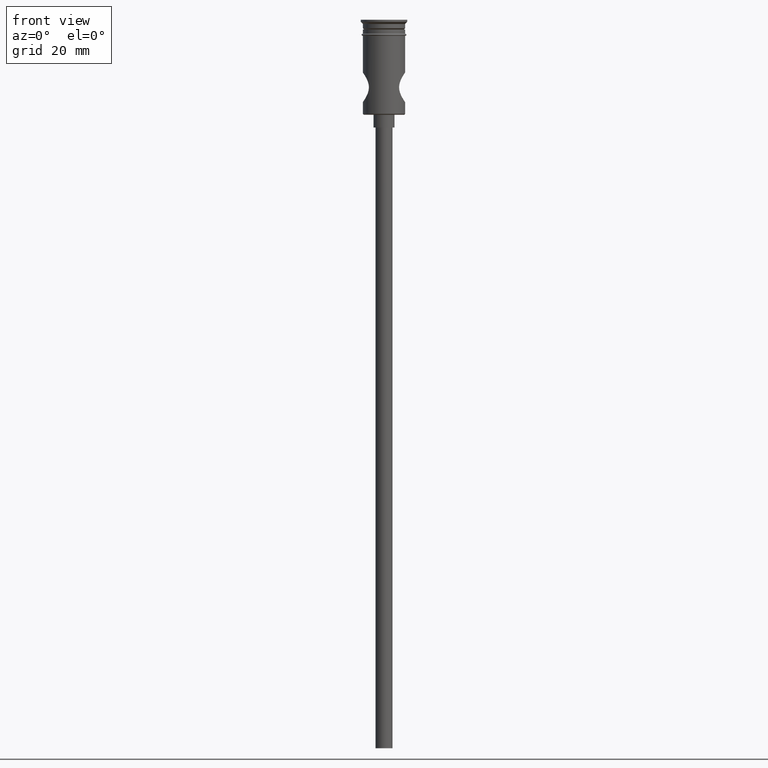
[diagram: clean part render]
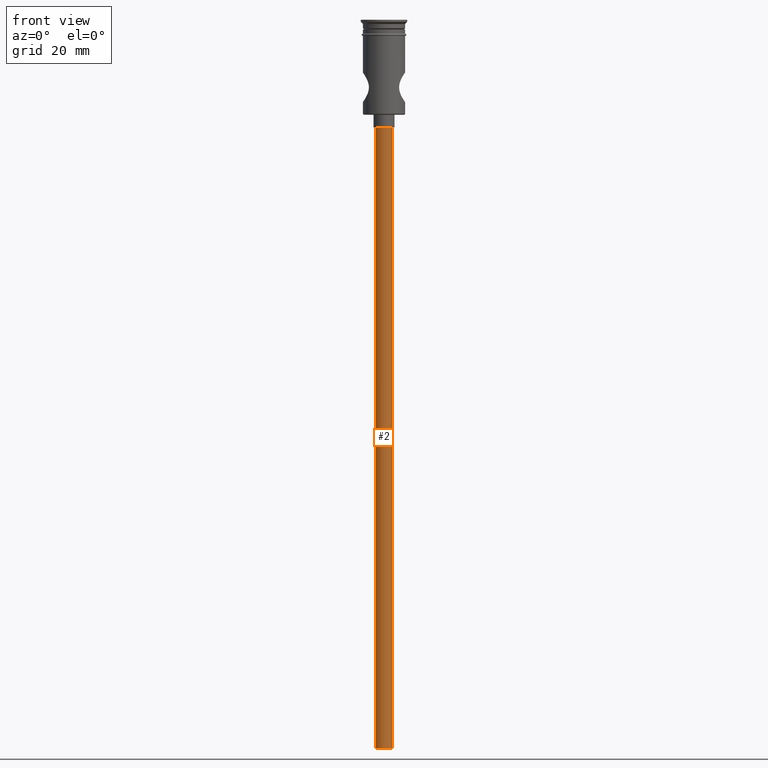
[diagram: same view with one face highlighted and labeled with its STEP entity id]
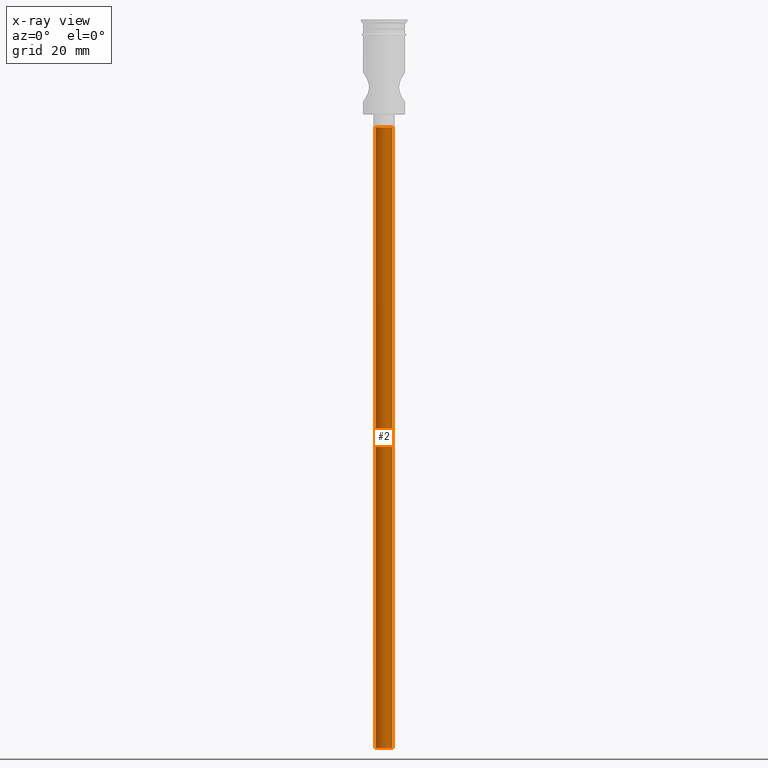
[diagram: x-ray of the same camera — body ghosted, the highlighted face saturated]
A machine part, front view. The second image highlights one B-rep face of the part: STEP entity #2.
The next image is the same camera in x-ray: the body ghosted, the highlighted face saturated — about 0% of this face is hidden behind the body in this view.
In plain terms, the highlighted cylindrical surface (edge-blend (fillet) strip) has radius 2 mm, axis along (-0, -0, 1).
Its self-contained STEP definition (entity closure, byte-faithful):
#2 = ADVANCED_FACE ( 'NONE', ( #1074 ), #948, .T. ) ;
#65 = DIRECTION ( 'NONE',  ( 0.000000000000000000, 0.000000000000000000, -1.000000000000000000 ) ) ;
#76 = DIRECTION ( 'NONE',  ( -0.000000000000000000, -0.000000000000000000, 1.000000000000000000 ) ) ;
#91 = DIRECTION ( 'NONE',  ( 0.000000000000000000, 0.000000000000000000, -1.000000000000000000 ) ) ;
#96 = LINE ( 'NONE', #1119, #300 ) ;
#128 = ORIENTED_EDGE ( 'NONE', *, *, #344, .F. ) ;
#194 = CARTESIAN_POINT ( 'NONE',  ( 0.000000000000000000, 0.000000000000000000, -172.5000000000000000 ) ) ;
#224 = CARTESIAN_POINT ( 'NONE',  ( -2.000000000000000000, 2.449293598294706414E-16, -172.5000000000000000 ) ) ;
#284 = DIRECTION ( 'NONE',  ( -0.000000000000000000, -0.000000000000000000, 1.000000000000000000 ) ) ;
#300 = VECTOR ( 'NONE', #1352, 1000.000000000000000 ) ;
#301 = VERTEX_POINT ( 'NONE', #471 ) ;
#344 = EDGE_CURVE ( 'NONE', #546, #436, #413, .T. ) ;
#402 = LINE ( 'NONE', #839, #688 ) ;
#413 = CIRCLE ( 'NONE', #1213, 2.000000000000000000 ) ;
#436 = VERTEX_POINT ( 'NONE', #224 ) ;
#471 = CARTESIAN_POINT ( 'NONE',  ( 2.000000000000000000, 0.000000000000000000, -25.50000000000000000 ) ) ;
#546 = VERTEX_POINT ( 'NONE', #914 ) ;
#594 = AXIS2_PLACEMENT_3D ( 'NONE', #1310, #91, #1445 ) ;
#643 = CARTESIAN_POINT ( 'NONE',  ( 0.000000000000000000, 0.000000000000000000, -172.5000000000000000 ) ) ;
#688 = VECTOR ( 'NONE', #284, 1000.000000000000000 ) ;
#711 = ORIENTED_EDGE ( 'NONE', *, *, #1047, .T. ) ;
#731 = DIRECTION ( 'NONE',  ( -1.000000000000000000, 0.000000000000000000, 0.000000000000000000 ) ) ;
#750 = DIRECTION ( 'NONE',  ( 1.000000000000000000, 0.000000000000000000, 0.000000000000000000 ) ) ;
#835 = VERTEX_POINT ( 'NONE', #1230 ) ;
#839 = CARTESIAN_POINT ( 'NONE',  ( 2.000000000000000000, 0.000000000000000000, -172.5000000000000000 ) ) ;
#885 = AXIS2_PLACEMENT_3D ( 'NONE', #194, #76, #750 ) ;
#914 = CARTESIAN_POINT ( 'NONE',  ( 2.000000000000000000, 0.000000000000000000, -172.5000000000000000 ) ) ;
#921 = ORIENTED_EDGE ( 'NONE', *, *, #1157, .F. ) ;
#948 = CYLINDRICAL_SURFACE ( 'NONE', #885, 2.000000000000000000 ) ;
#1047 = EDGE_CURVE ( 'NONE', #301, #835, #1153, .T. ) ;
#1074 = FACE_OUTER_BOUND ( 'NONE', #1270, .T. ) ;
#1086 = EDGE_CURVE ( 'NONE', #546, #301, #402, .T. ) ;
#1119 = CARTESIAN_POINT ( 'NONE',  ( -2.000000000000000000, 2.449293598294706414E-16, -172.5000000000000000 ) ) ;
#1153 = CIRCLE ( 'NONE', #594, 2.000000000000000000 ) ;
#1157 = EDGE_CURVE ( 'NONE', #436, #835, #96, .T. ) ;
#1213 = AXIS2_PLACEMENT_3D ( 'NONE', #643, #65, #731 ) ;
#1230 = CARTESIAN_POINT ( 'NONE',  ( -2.000000000000000000, 2.449293598294706414E-16, -25.50000000000000000 ) ) ;
#1270 = EDGE_LOOP ( 'NONE', ( #921, #128, #1355, #711 ) ) ;
#1310 = CARTESIAN_POINT ( 'NONE',  ( 0.000000000000000000, 0.000000000000000000, -25.50000000000000000 ) ) ;
#1352 = DIRECTION ( 'NONE',  ( -0.000000000000000000, -0.000000000000000000, 1.000000000000000000 ) ) ;
#1355 = ORIENTED_EDGE ( 'NONE', *, *, #1086, .T. ) ;
#1445 = DIRECTION ( 'NONE',  ( -1.000000000000000000, 0.000000000000000000, 0.000000000000000000 ) ) ;